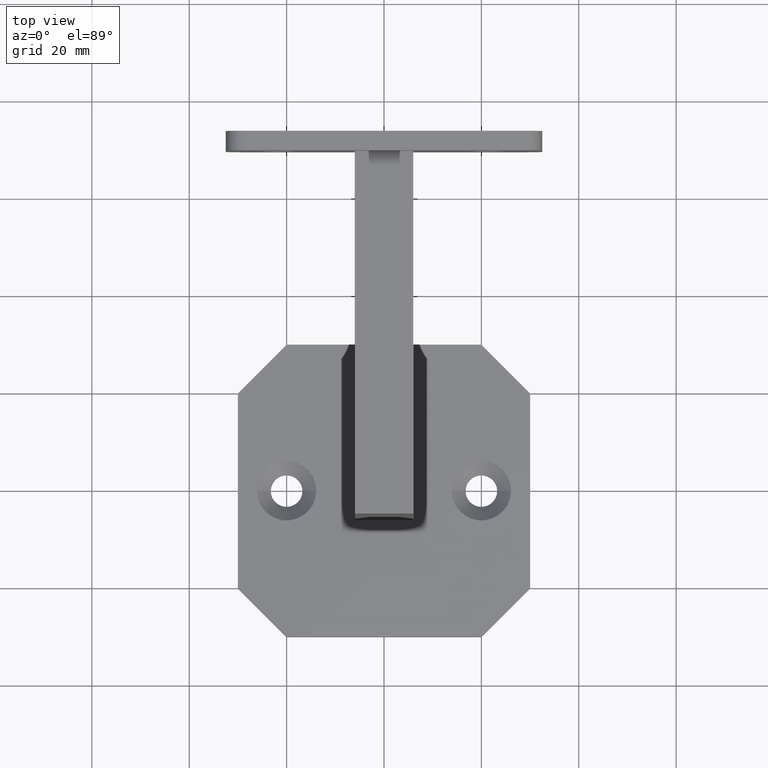
[diagram: clean part render]
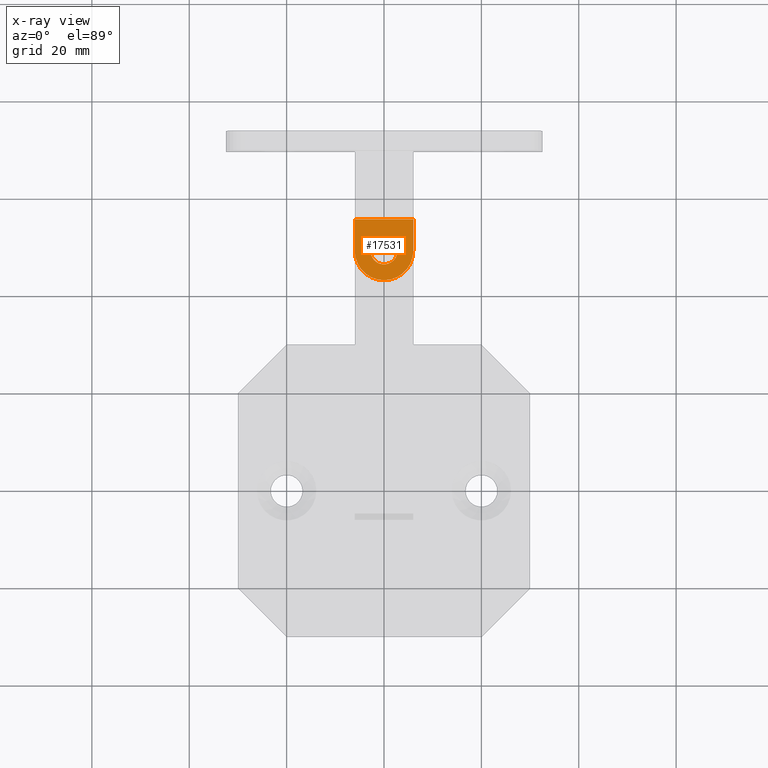
[diagram: x-ray — body ghosted, one internal face saturated and labeled with its STEP entity id]
A machine part, top view, then the same camera in x-ray: the body is ghosted and one INTERNAL B-rep face — a face not visible from any outside direction — is saturated and labeled: STEP entity #17531.
In plain terms, the highlighted planar face has unit normal (0, 0, 1).
Its self-contained STEP definition (entity closure, byte-faithful):
#88 = ORIENTED_EDGE ( 'NONE', *, *, #9465, .T. ) ;
#187 = AXIS2_PLACEMENT_3D ( 'NONE', #2912, #15876, #17902 ) ;
#196 = CARTESIAN_POINT ( 'NONE',  ( 0.000000000000000000, -7.250000000000002665, 0.000000000000000000 ) ) ;
#238 = DIRECTION ( 'NONE',  ( 1.000000000000000000, -0.000000000000000000, -0.000000000000000000 ) ) ;
#272 = VERTEX_POINT ( 'NONE', #1611 ) ;
#1611 = CARTESIAN_POINT ( 'NONE',  ( -2.749999999999997780, -7.250000000000002665, 0.000000000000000000 ) ) ;
#1792 = AXIS2_PLACEMENT_3D ( 'NONE', #18034, #16478, #19979 ) ;
#2297 = LINE ( 'NONE', #7525, #22227 ) ;
#2912 = CARTESIAN_POINT ( 'NONE',  ( 7.528045273106889614E-16, -7.250000000000000888, 0.000000000000000000 ) ) ;
#3308 = VECTOR ( 'NONE', #18204, 1000.000000000000000 ) ;
#4135 = EDGE_CURVE ( 'NONE', #4431, #12087, #13374, .T. ) ;
#4151 = DIRECTION ( 'NONE',  ( 1.000000000000000000, 0.000000000000000000, 0.000000000000000000 ) ) ;
#4431 = VERTEX_POINT ( 'NONE', #23158 ) ;
#5149 = ORIENTED_EDGE ( 'NONE', *, *, #9238, .T. ) ;
#5325 = VERTEX_POINT ( 'NONE', #9693 ) ;
#5345 = LINE ( 'NONE', #18288, #3308 ) ;
#5694 = ORIENTED_EDGE ( 'NONE', *, *, #12529, .T. ) ;
#7074 = PLANE ( 'NONE',  #1792 ) ;
#7308 = DIRECTION ( 'NONE',  ( 1.000000000000000000, 0.000000000000000000, 0.000000000000000000 ) ) ;
#7525 = CARTESIAN_POINT ( 'NONE',  ( 6.000000000000001776, -0.7500000000000006661, 0.000000000000000000 ) ) ;
#7884 = EDGE_LOOP ( 'NONE', ( #12969, #88 ) ) ;
#7987 = DIRECTION ( 'NONE',  ( 1.000000000000000000, 0.000000000000000000, 0.000000000000000000 ) ) ;
#8351 = VERTEX_POINT ( 'NONE', #21705 ) ;
#8385 = AXIS2_PLACEMENT_3D ( 'NONE', #196, #11464, #4151 ) ;
#8776 = CARTESIAN_POINT ( 'NONE',  ( 1.734723475976807094E-15, -13.25000000000000178, 0.000000000000000000 ) ) ;
#9238 = EDGE_CURVE ( 'NONE', #9511, #8351, #5345, .T. ) ;
#9424 = CIRCLE ( 'NONE', #19130, 6.000000000000000000 ) ;
#9465 = EDGE_CURVE ( 'NONE', #272, #20894, #21470, .T. ) ;
#9511 = VERTEX_POINT ( 'NONE', #15176 ) ;
#9587 = FACE_OUTER_BOUND ( 'NONE', #12078, .T. ) ;
#9693 = CARTESIAN_POINT ( 'NONE',  ( 6.000000000000001776, -0.7500000000000006661, 0.000000000000000000 ) ) ;
#10163 = FACE_BOUND ( 'NONE', #7884, .T. ) ;
#10965 = CARTESIAN_POINT ( 'NONE',  ( 1.734723475976807094E-15, -7.250000000000000888, 0.000000000000000000 ) ) ;
#11464 = DIRECTION ( 'NONE',  ( 0.000000000000000000, 0.000000000000000000, 1.000000000000000000 ) ) ;
#12078 = EDGE_LOOP ( 'NONE', ( #19174, #14646, #5694, #5149, #19779 ) ) ;
#12087 = VERTEX_POINT ( 'NONE', #8776 ) ;
#12529 = EDGE_CURVE ( 'NONE', #12087, #9511, #9424, .T. ) ;
#12851 = CIRCLE ( 'NONE', #22799, 2.749999999999997780 ) ;
#12969 = ORIENTED_EDGE ( 'NONE', *, *, #16952, .T. ) ;
#13374 = CIRCLE ( 'NONE', #187, 6.000000000000000000 ) ;
#13714 = CARTESIAN_POINT ( 'NONE',  ( 0.000000000000000000, -7.250000000000002665, 0.000000000000000000 ) ) ;
#14646 = ORIENTED_EDGE ( 'NONE', *, *, #4135, .T. ) ;
#14660 = VECTOR ( 'NONE', #18407, 1000.000000000000000 ) ;
#14980 = EDGE_CURVE ( 'NONE', #5325, #4431, #21682, .T. ) ;
#15176 = CARTESIAN_POINT ( 'NONE',  ( -5.999999999999999112, -7.250000000000001776, 0.000000000000000000 ) ) ;
#15876 = DIRECTION ( 'NONE',  ( -0.000000000000000000, -0.000000000000000000, -1.000000000000000000 ) ) ;
#16478 = DIRECTION ( 'NONE',  ( 0.000000000000000000, 0.000000000000000000, 1.000000000000000000 ) ) ;
#16952 = EDGE_CURVE ( 'NONE', #20894, #272, #12851, .T. ) ;
#17345 = DIRECTION ( 'NONE',  ( 0.000000000000000000, 0.000000000000000000, 1.000000000000000000 ) ) ;
#17531 = ADVANCED_FACE ( 'NONE', ( #10163, #9587 ), #7074, .F. ) ;
#17902 = DIRECTION ( 'NONE',  ( 1.000000000000000000, 0.000000000000000000, 0.000000000000000000 ) ) ;
#18034 = CARTESIAN_POINT ( 'NONE',  ( 0.000000000000000000, 0.000000000000000000, 0.000000000000000000 ) ) ;
#18204 = DIRECTION ( 'NONE',  ( -3.469446951953614189E-16, 1.000000000000000000, -0.000000000000000000 ) ) ;
#18288 = CARTESIAN_POINT ( 'NONE',  ( -6.000000000000001776, -0.7500000000000006661, 0.000000000000000000 ) ) ;
#18407 = DIRECTION ( 'NONE',  ( -0.000000000000000000, -1.000000000000000000, -0.000000000000000000 ) ) ;
#18523 = DIRECTION ( 'NONE',  ( -0.000000000000000000, -0.000000000000000000, -1.000000000000000000 ) ) ;
#19130 = AXIS2_PLACEMENT_3D ( 'NONE', #10965, #18523, #7308 ) ;
#19174 = ORIENTED_EDGE ( 'NONE', *, *, #14980, .T. ) ;
#19779 = ORIENTED_EDGE ( 'NONE', *, *, #23112, .T. ) ;
#19979 = DIRECTION ( 'NONE',  ( 1.000000000000000000, 0.000000000000000000, -0.000000000000000000 ) ) ;
#20189 = CARTESIAN_POINT ( 'NONE',  ( 6.000000000000001776, -13.25000000000000178, 0.000000000000000000 ) ) ;
#20391 = CARTESIAN_POINT ( 'NONE',  ( 2.749999999999997780, -7.250000000000002665, 0.000000000000000000 ) ) ;
#20894 = VERTEX_POINT ( 'NONE', #20391 ) ;
#21470 = CIRCLE ( 'NONE', #8385, 2.749999999999997780 ) ;
#21682 = LINE ( 'NONE', #20189, #14660 ) ;
#21705 = CARTESIAN_POINT ( 'NONE',  ( -6.000000000000001776, -0.7500000000000006661, 0.000000000000000000 ) ) ;
#22227 = VECTOR ( 'NONE', #238, 1000.000000000000000 ) ;
#22799 = AXIS2_PLACEMENT_3D ( 'NONE', #13714, #17345, #7987 ) ;
#23112 = EDGE_CURVE ( 'NONE', #8351, #5325, #2297, .T. ) ;
#23158 = CARTESIAN_POINT ( 'NONE',  ( 6.000000000000001776, -7.250000000000000000, 0.000000000000000000 ) ) ;